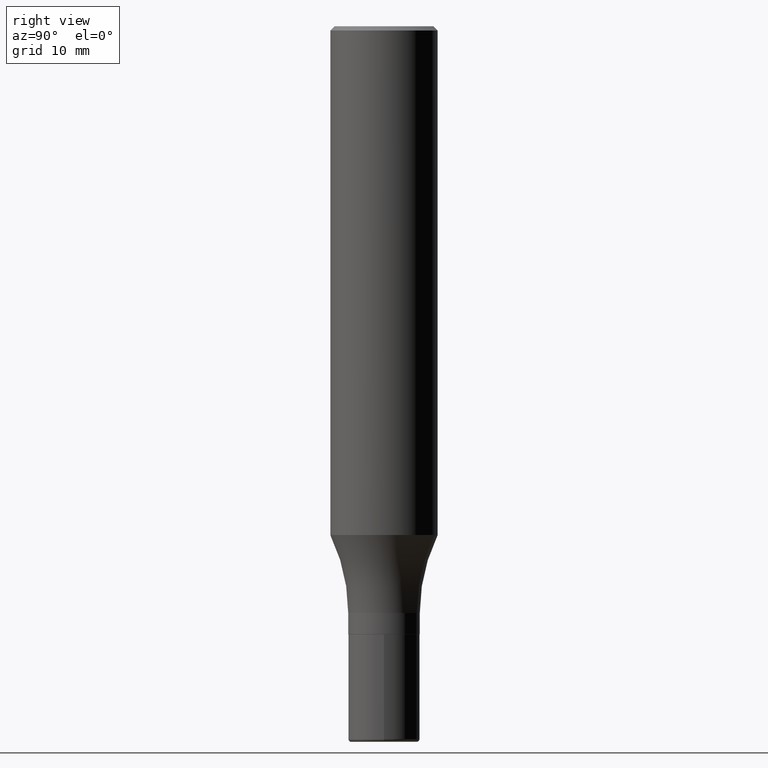
[diagram: clean part render]
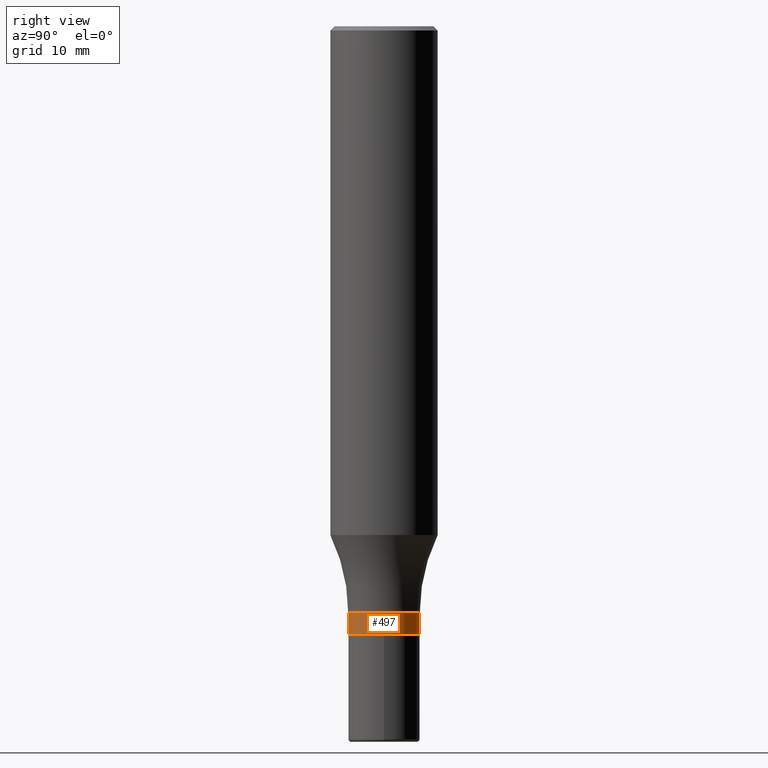
[diagram: same view with one face highlighted and labeled with its STEP entity id]
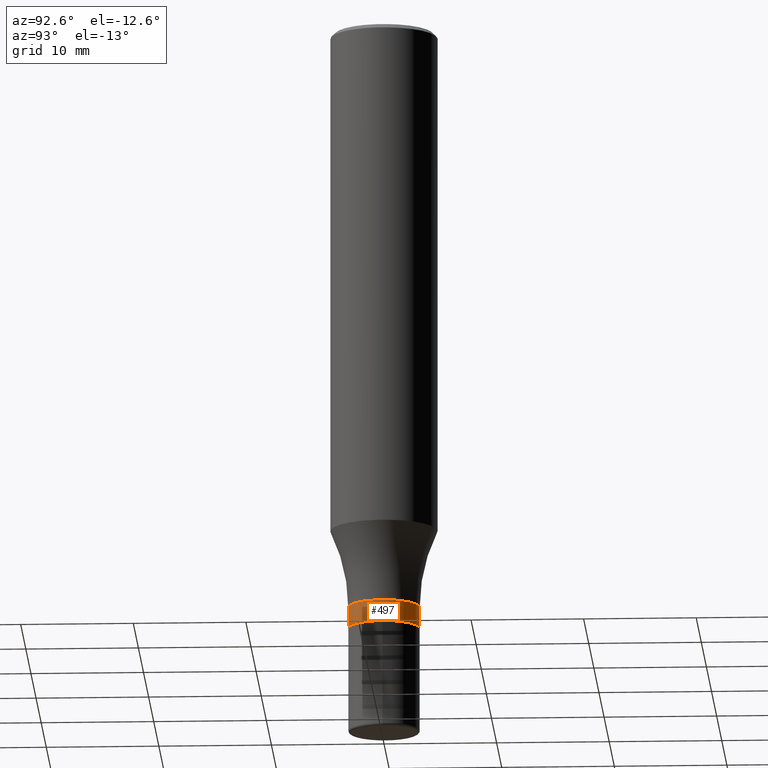
[diagram: same view with one face highlighted and labeled with its STEP entity id]
A machine part, right view. The second image highlights one B-rep face of the part: STEP entity #497.
A second angle (auxiliary view) of the same face is appended — the face is thin or edge-on in the first view.
In plain terms, the highlighted cylindrical surface (edge-blend (fillet) strip) has radius 3.175 mm, axis along (-0, 0, 1).
Its self-contained STEP definition (entity closure, byte-faithful):
#13 = AXIS2_PLACEMENT_3D ( 'NONE', #154, #317, #519 ) ;
#19 = VERTEX_POINT ( 'NONE', #269 ) ;
#55 = ORIENTED_EDGE ( 'NONE', *, *, #399, .F. ) ;
#75 = CARTESIAN_POINT ( 'NONE',  ( 1.110223024625203083E-15, 0.1249999999999928807, -2.050000000000000711 ) ) ;
#88 = CARTESIAN_POINT ( 'NONE',  ( 8.881784197001765083E-16, 0.1249999999999926170, -2.124500000000001165 ) ) ;
#92 = CIRCLE ( 'NONE', #13, 0.1250000000000000278 ) ;
#114 = ORIENTED_EDGE ( 'NONE', *, *, #349, .F. ) ;
#115 = AXIS2_PLACEMENT_3D ( 'NONE', #206, #501, #369 ) ;
#119 = DIRECTION ( 'NONE',  ( -2.445919078284912342E-29, 3.490836523568370866E-15, 1.000000000000000000 ) ) ;
#120 = DIRECTION ( 'NONE',  ( -6.982962677686265922E-15, -1.000000000000000000, 4.370956789862820361E-15 ) ) ;
#127 = CARTESIAN_POINT ( 'NONE',  ( 8.881784197001254296E-16, 0.1250000000000000278, -4.363545654460464569E-16 ) ) ;
#136 = CARTESIAN_POINT ( 'NONE',  ( -8.728703347107333448E-16, -0.1250000000000071887, -2.049999999999999822 ) ) ;
#144 = VERTEX_POINT ( 'NONE', #88 ) ;
#154 = CARTESIAN_POINT ( 'NONE',  ( 5.014134110484069838E-29, -7.156214873315160631E-15, -2.050000000000000266 ) ) ;
#206 = CARTESIAN_POINT ( 'NONE',  ( 0.000000000000000000, 0.000000000000000000, 0.000000000000000000 ) ) ;
#231 = VECTOR ( 'NONE', #119, 39.37007874015748143 ) ;
#255 = ORIENTED_EDGE ( 'NONE', *, *, #261, .T. ) ;
#257 = ORIENTED_EDGE ( 'NONE', *, *, #422, .T. ) ;
#261 = EDGE_CURVE ( 'NONE', #144, #334, #517, .T. ) ;
#265 = FACE_OUTER_BOUND ( 'NONE', #463, .T. ) ;
#269 = CARTESIAN_POINT ( 'NONE',  ( -8.728703347107315698E-16, -0.1250000000000074385, -2.124499999999999833 ) ) ;
#277 = CARTESIAN_POINT ( 'NONE',  ( -8.728703347107834374E-16, -0.1250000000000000278, 4.363545654460464569E-16 ) ) ;
#287 = DIRECTION ( 'NONE',  ( -2.445919078284912342E-29, 3.490836523568370866E-15, 1.000000000000000000 ) ) ;
#298 = CYLINDRICAL_SURFACE ( 'NONE', #115, 0.1250000000000000278 ) ;
#300 = VECTOR ( 'NONE', #287, 39.37007874015748143 ) ;
#317 = DIRECTION ( 'NONE',  ( -2.445919078284912062E-29, 3.490836523568370866E-15, 1.000000000000000000 ) ) ;
#321 = CARTESIAN_POINT ( 'NONE',  ( 5.196355081816296386E-29, -7.416282194321006398E-15, -2.124500000000000721 ) ) ;
#334 = VERTEX_POINT ( 'NONE', #75 ) ;
#349 = EDGE_CURVE ( 'NONE', #469, #334, #92, .T. ) ;
#365 = LINE ( 'NONE', #277, #231 ) ;
#369 = DIRECTION ( 'NONE',  ( -6.982962677686265922E-15, -1.000000000000000000, 3.490836523568370866E-15 ) ) ;
#370 = AXIS2_PLACEMENT_3D ( 'NONE', #321, #475, #120 ) ;
#393 = CIRCLE ( 'NONE', #370, 0.1250000000000000278 ) ;
#399 = EDGE_CURVE ( 'NONE', #19, #469, #365, .T. ) ;
#422 = EDGE_CURVE ( 'NONE', #19, #144, #393, .T. ) ;
#463 = EDGE_LOOP ( 'NONE', ( #257, #255, #114, #55 ) ) ;
#469 = VERTEX_POINT ( 'NONE', #136 ) ;
#475 = DIRECTION ( 'NONE',  ( -2.445919078284912062E-29, 3.490836523568370866E-15, 1.000000000000000000 ) ) ;
#497 = ADVANCED_FACE ( 'NONE', ( #265 ), #298, .T. ) ;
#501 = DIRECTION ( 'NONE',  ( -2.445919078284912062E-29, 3.490836523568370866E-15, 1.000000000000000000 ) ) ;
#517 = LINE ( 'NONE', #127, #300 ) ;
#519 = DIRECTION ( 'NONE',  ( -6.982962677686265922E-15, -1.000000000000000000, 4.370956789862820361E-15 ) ) ;